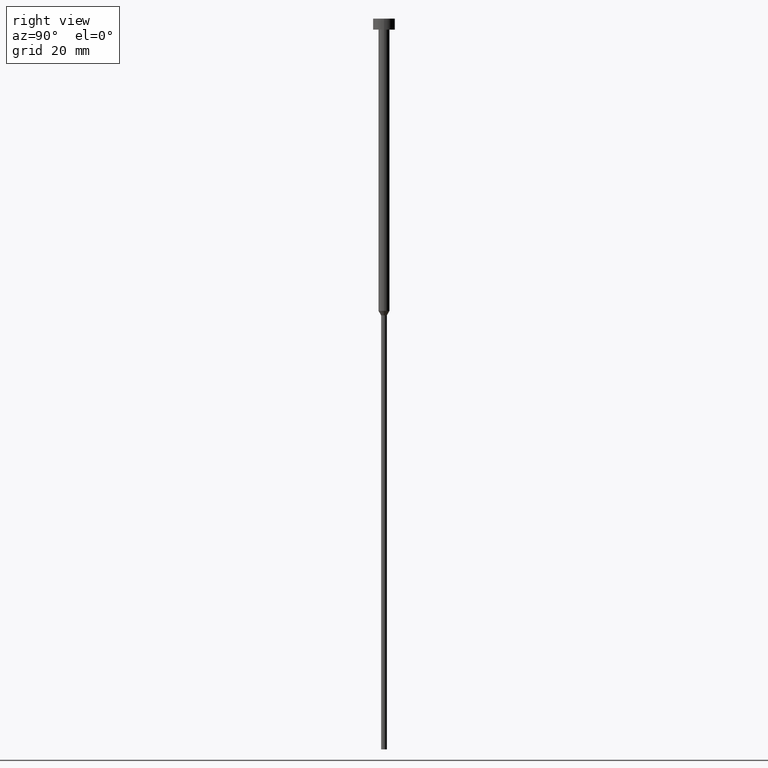
[diagram: clean part render]
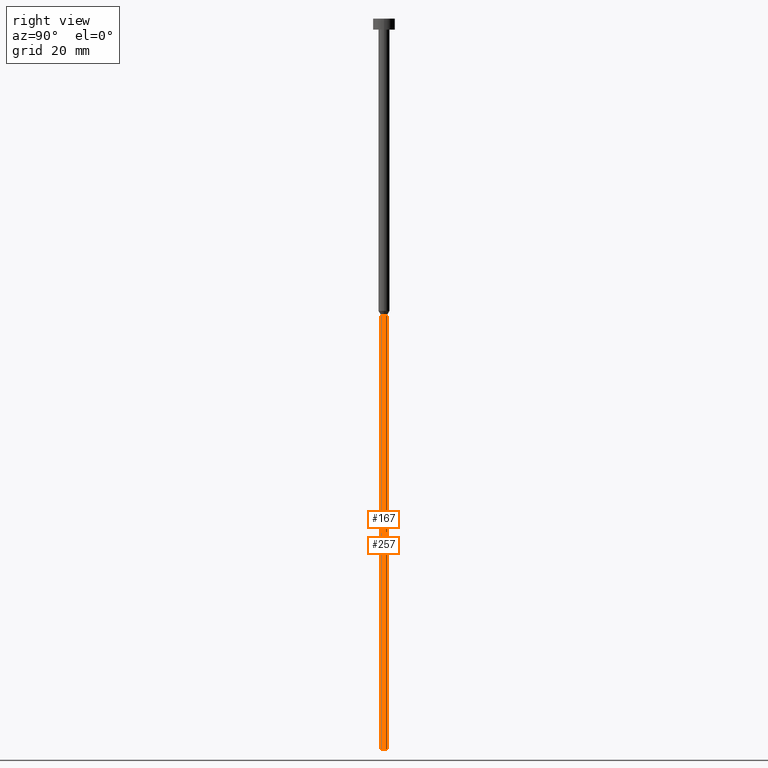
[diagram: same view with one multi-face feature highlighted, each face labeled with its STEP entity id]
A machine part, right view. The highlighted faces form ONE feature: a constant-radius fillet chain: 2 tangent blend faces with common blend radius 0.8 mm. The faces share edges in the B-rep.
Their STEP definitions:
[1] entity #167 (Cylinder):
#6 = DIRECTION ( 'NONE',  ( 1.000000000000000000, 0.000000000000000000, 0.000000000000000000 ) ) ;
#9 = CARTESIAN_POINT ( 'NONE',  ( -0.8000000000000000444, 9.797174393178826150E-17, 0.000000000000000000 ) ) ;
#34 = CYLINDRICAL_SURFACE ( 'NONE', #101, 0.8000000000000000444 ) ;
#35 = EDGE_CURVE ( 'NONE', #332, #202, #196, .T. ) ;
#36 = LINE ( 'NONE', #164, #349 ) ;
#43 = CARTESIAN_POINT ( 'NONE',  ( 0.8000000000000001554, 0.000000000000000000, -81.21243556529820751 ) ) ;
#44 = ORIENTED_EDGE ( 'NONE', *, *, #96, .T. ) ;
#68 = DIRECTION ( 'NONE',  ( -0.000000000000000000, -0.000000000000000000, 1.000000000000000000 ) ) ;
#79 = EDGE_CURVE ( 'NONE', #202, #181, #182, .T. ) ;
#96 = EDGE_CURVE ( 'NONE', #332, #351, #187, .T. ) ;
#101 = AXIS2_PLACEMENT_3D ( 'NONE', #258, #224, #341 ) ;
#102 = EDGE_LOOP ( 'NONE', ( #242, #44, #237, #300 ) ) ;
#164 = CARTESIAN_POINT ( 'NONE',  ( 0.8000000000000000444, 0.000000000000000000, 0.000000000000000000 ) ) ;
#167 = ADVANCED_FACE ( 'NONE', ( #310 ), #34, .T. ) ;
#168 = DIRECTION ( 'NONE',  ( -0.000000000000000000, -0.000000000000000000, 1.000000000000000000 ) ) ;
#172 = DIRECTION ( 'NONE',  ( -0.000000000000000000, -0.000000000000000000, 1.000000000000000000 ) ) ;
#181 = VERTEX_POINT ( 'NONE', #43 ) ;
#182 = CIRCLE ( 'NONE', #248, 0.8000000000000001554 ) ;
#184 = CARTESIAN_POINT ( 'NONE',  ( 0.7999999999999999334, 0.000000000000000000, -200.0000000000000000 ) ) ;
#187 = CIRCLE ( 'NONE', #205, 0.7999999999999999334 ) ;
#196 = LINE ( 'NONE', #9, #289 ) ;
#202 = VERTEX_POINT ( 'NONE', #286 ) ;
#205 = AXIS2_PLACEMENT_3D ( 'NONE', #309, #68, #6 ) ;
#219 = EDGE_CURVE ( 'NONE', #351, #181, #36, .T. ) ;
#224 = DIRECTION ( 'NONE',  ( -0.000000000000000000, -0.000000000000000000, 1.000000000000000000 ) ) ;
#229 = DIRECTION ( 'NONE',  ( 1.000000000000000000, 0.000000000000000000, 0.000000000000000000 ) ) ;
#230 = DIRECTION ( 'NONE',  ( -0.000000000000000000, -0.000000000000000000, 1.000000000000000000 ) ) ;
#237 = ORIENTED_EDGE ( 'NONE', *, *, #219, .T. ) ;
#242 = ORIENTED_EDGE ( 'NONE', *, *, #35, .F. ) ;
#248 = AXIS2_PLACEMENT_3D ( 'NONE', #255, #230, #229 ) ;
#255 = CARTESIAN_POINT ( 'NONE',  ( 0.000000000000000000, 0.000000000000000000, -81.21243556529820751 ) ) ;
#258 = CARTESIAN_POINT ( 'NONE',  ( 0.000000000000000000, 0.000000000000000000, 0.000000000000000000 ) ) ;
#269 = CARTESIAN_POINT ( 'NONE',  ( -0.7999999999999999334, 9.797174393178826150E-17, -200.0000000000000000 ) ) ;
#286 = CARTESIAN_POINT ( 'NONE',  ( -0.8000000000000002665, 9.797174393178828616E-17, -81.21243556529820751 ) ) ;
#289 = VECTOR ( 'NONE', #172, 1000.000000000000000 ) ;
#300 = ORIENTED_EDGE ( 'NONE', *, *, #79, .F. ) ;
#309 = CARTESIAN_POINT ( 'NONE',  ( 0.000000000000000000, 0.000000000000000000, -200.0000000000000000 ) ) ;
#310 = FACE_OUTER_BOUND ( 'NONE', #102, .T. ) ;
#332 = VERTEX_POINT ( 'NONE', #269 ) ;
#341 = DIRECTION ( 'NONE',  ( 1.000000000000000000, 0.000000000000000000, 0.000000000000000000 ) ) ;
#349 = VECTOR ( 'NONE', #168, 1000.000000000000000 ) ;
#351 = VERTEX_POINT ( 'NONE', #184 ) ;
[2] entity #257 (Cylinder):
#9 = CARTESIAN_POINT ( 'NONE',  ( -0.8000000000000000444, 9.797174393178826150E-17, 0.000000000000000000 ) ) ;
#17 = DIRECTION ( 'NONE',  ( -0.000000000000000000, -0.000000000000000000, 1.000000000000000000 ) ) ;
#20 = AXIS2_PLACEMENT_3D ( 'NONE', #155, #17, #347 ) ;
#22 = DIRECTION ( 'NONE',  ( 1.000000000000000000, 0.000000000000000000, 0.000000000000000000 ) ) ;
#24 = EDGE_CURVE ( 'NONE', #351, #332, #339, .T. ) ;
#35 = EDGE_CURVE ( 'NONE', #332, #202, #196, .T. ) ;
#36 = LINE ( 'NONE', #164, #349 ) ;
#43 = CARTESIAN_POINT ( 'NONE',  ( 0.8000000000000001554, 0.000000000000000000, -81.21243556529820751 ) ) ;
#75 = FACE_OUTER_BOUND ( 'NONE', #298, .T. ) ;
#130 = DIRECTION ( 'NONE',  ( -0.000000000000000000, -0.000000000000000000, 1.000000000000000000 ) ) ;
#155 = CARTESIAN_POINT ( 'NONE',  ( 0.000000000000000000, 0.000000000000000000, -81.21243556529820751 ) ) ;
#164 = CARTESIAN_POINT ( 'NONE',  ( 0.8000000000000000444, 0.000000000000000000, 0.000000000000000000 ) ) ;
#168 = DIRECTION ( 'NONE',  ( -0.000000000000000000, -0.000000000000000000, 1.000000000000000000 ) ) ;
#172 = DIRECTION ( 'NONE',  ( -0.000000000000000000, -0.000000000000000000, 1.000000000000000000 ) ) ;
#173 = ORIENTED_EDGE ( 'NONE', *, *, #333, .F. ) ;
#181 = VERTEX_POINT ( 'NONE', #43 ) ;
#184 = CARTESIAN_POINT ( 'NONE',  ( 0.7999999999999999334, 0.000000000000000000, -200.0000000000000000 ) ) ;
#194 = CIRCLE ( 'NONE', #20, 0.8000000000000001554 ) ;
#196 = LINE ( 'NONE', #9, #289 ) ;
#202 = VERTEX_POINT ( 'NONE', #286 ) ;
#211 = ORIENTED_EDGE ( 'NONE', *, *, #219, .F. ) ;
#215 = AXIS2_PLACEMENT_3D ( 'NONE', #267, #297, #22 ) ;
#219 = EDGE_CURVE ( 'NONE', #351, #181, #36, .T. ) ;
#220 = AXIS2_PLACEMENT_3D ( 'NONE', #274, #130, #246 ) ;
#228 = ORIENTED_EDGE ( 'NONE', *, *, #35, .T. ) ;
#235 = CYLINDRICAL_SURFACE ( 'NONE', #215, 0.8000000000000000444 ) ;
#246 = DIRECTION ( 'NONE',  ( 1.000000000000000000, 0.000000000000000000, 0.000000000000000000 ) ) ;
#257 = ADVANCED_FACE ( 'NONE', ( #75 ), #235, .T. ) ;
#267 = CARTESIAN_POINT ( 'NONE',  ( 0.000000000000000000, 0.000000000000000000, 0.000000000000000000 ) ) ;
#269 = CARTESIAN_POINT ( 'NONE',  ( -0.7999999999999999334, 9.797174393178826150E-17, -200.0000000000000000 ) ) ;
#274 = CARTESIAN_POINT ( 'NONE',  ( 0.000000000000000000, 0.000000000000000000, -200.0000000000000000 ) ) ;
#286 = CARTESIAN_POINT ( 'NONE',  ( -0.8000000000000002665, 9.797174393178828616E-17, -81.21243556529820751 ) ) ;
#289 = VECTOR ( 'NONE', #172, 1000.000000000000000 ) ;
#297 = DIRECTION ( 'NONE',  ( -0.000000000000000000, -0.000000000000000000, 1.000000000000000000 ) ) ;
#298 = EDGE_LOOP ( 'NONE', ( #313, #228, #173, #211 ) ) ;
#313 = ORIENTED_EDGE ( 'NONE', *, *, #24, .T. ) ;
#332 = VERTEX_POINT ( 'NONE', #269 ) ;
#333 = EDGE_CURVE ( 'NONE', #181, #202, #194, .T. ) ;
#339 = CIRCLE ( 'NONE', #220, 0.7999999999999999334 ) ;
#347 = DIRECTION ( 'NONE',  ( 1.000000000000000000, 0.000000000000000000, 0.000000000000000000 ) ) ;
#349 = VECTOR ( 'NONE', #168, 1000.000000000000000 ) ;
#351 = VERTEX_POINT ( 'NONE', #184 ) ;